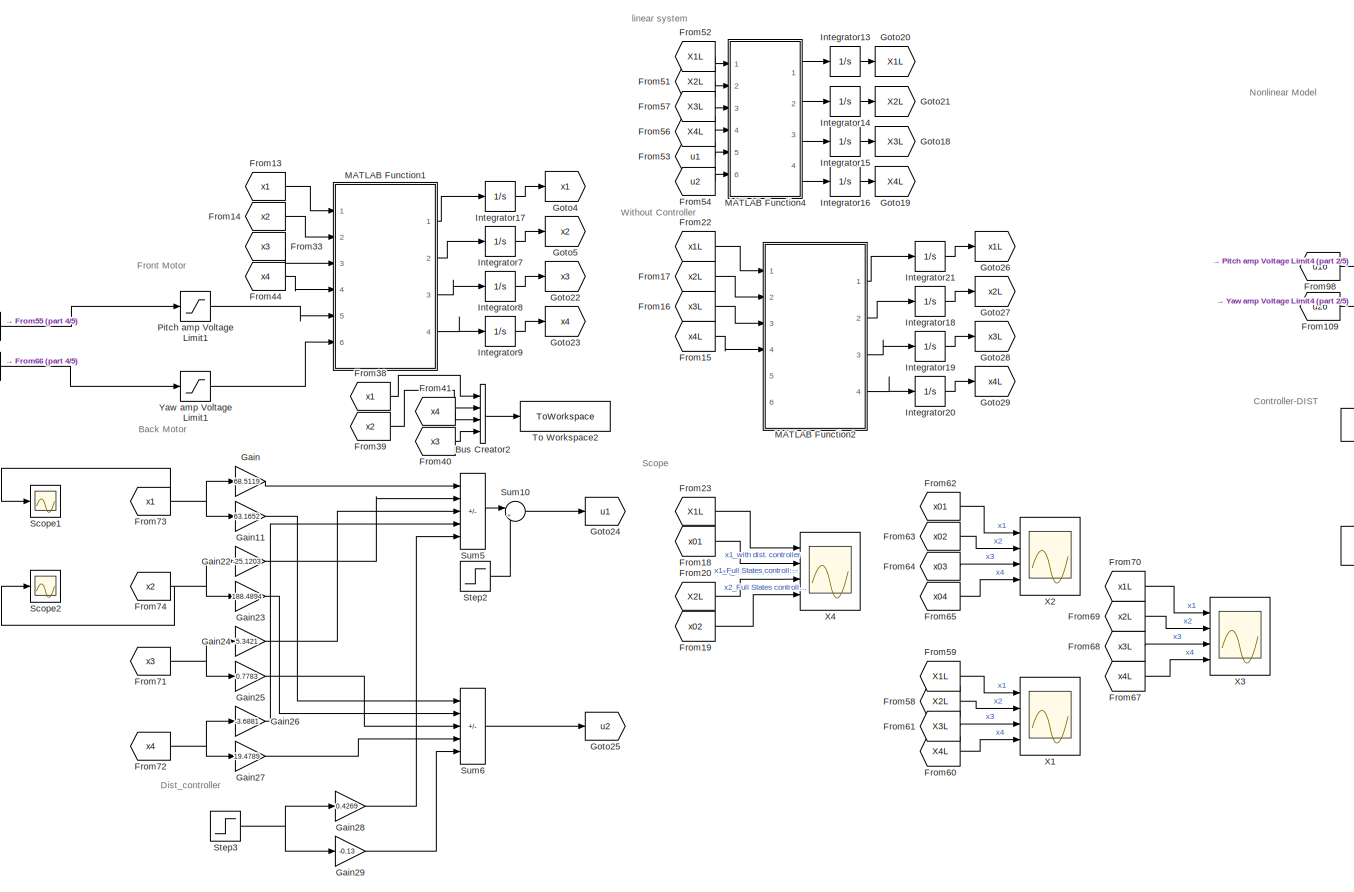
[diagram: root canvas - part 1/5, center side, full height]
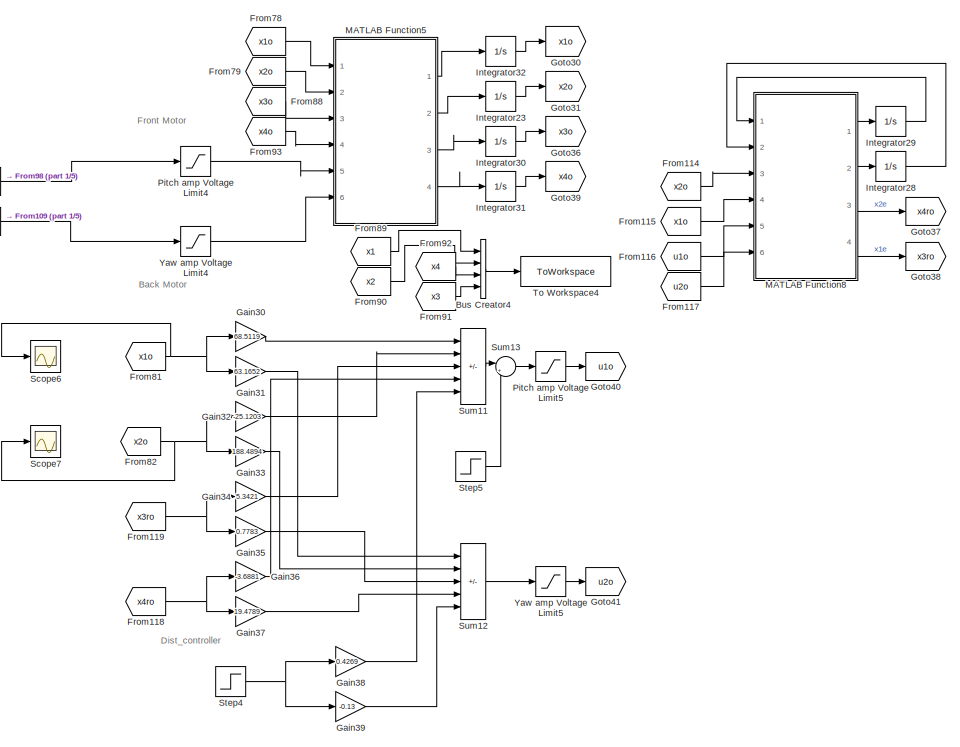
[diagram: root canvas - part 2/5, middle right region]
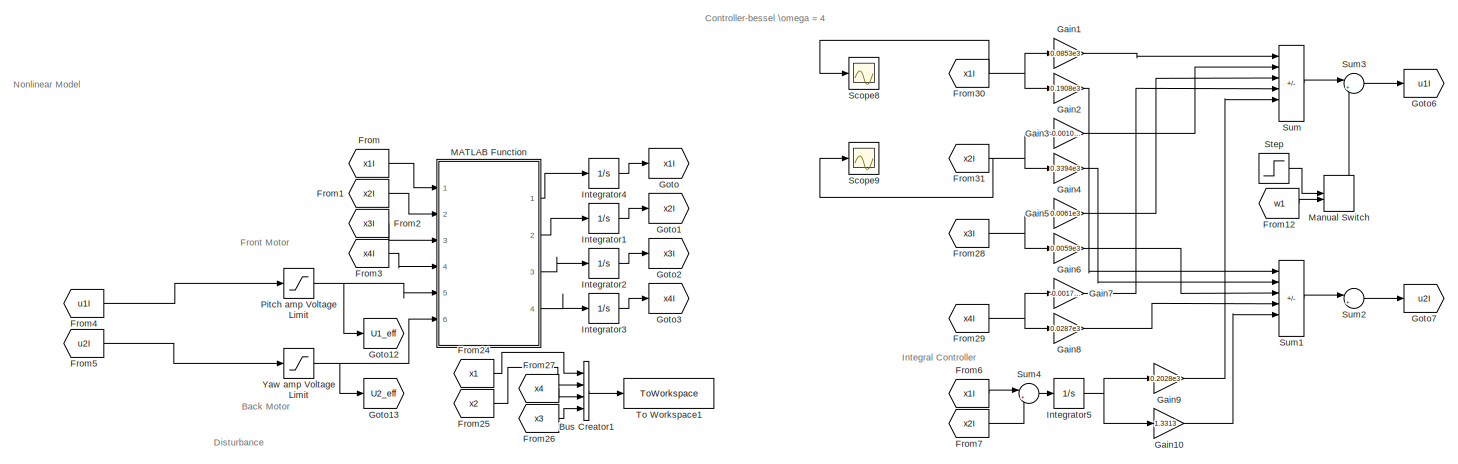
[diagram: root canvas - part 3/5, middle left region]
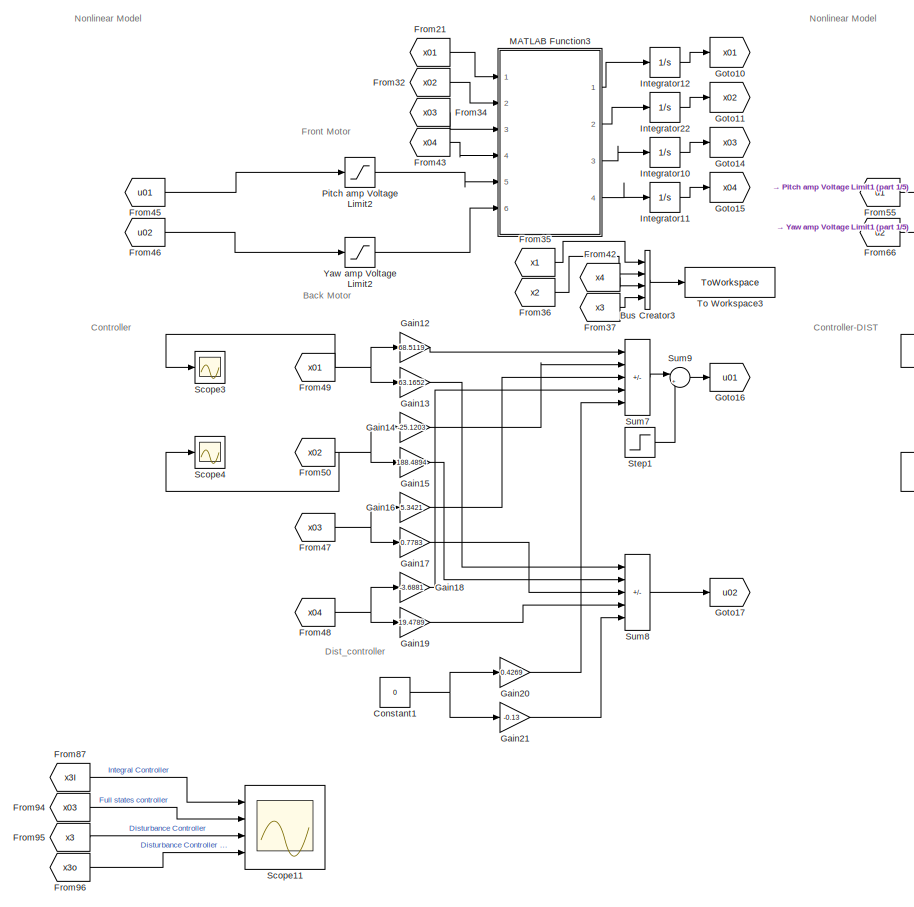
[diagram: root canvas - part 4/5, center side, full height]
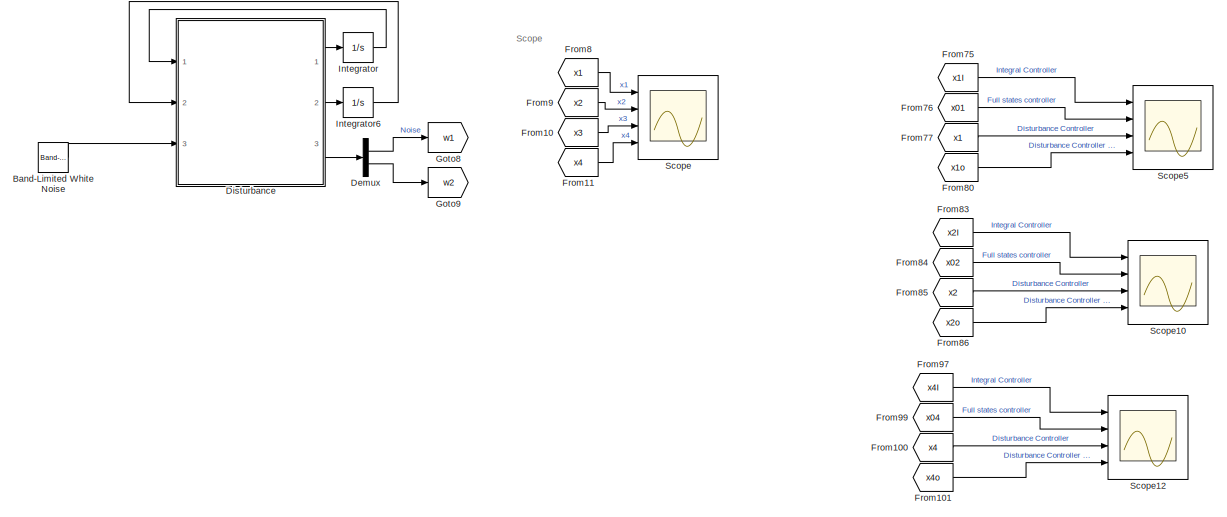
[diagram: root canvas - part 5/5, bottom left region]
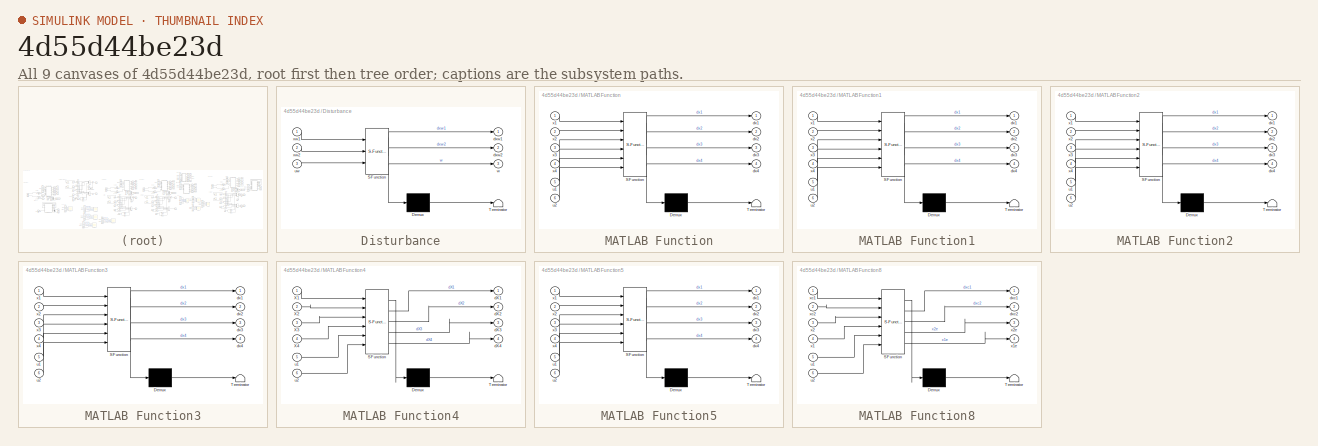
[diagram: thumbnail index - all 9 canvases of the model, root first then tree order]
MODEL slx_4d55d44be23d
KIND model
CONFIG AbsTol = auto
CONFIG EnableMultiTasking = off
CONFIG FixedStep = auto
CONFIG InitFcn = % NOTE: If using VoltPAQ-X1, make sure both Gain switches are set to 3.\nK_AMP = 3;\n% Maximum Output Voltage (V): YAW limited to 15 V. PITCH limited to 24 V.\nVMAX_AMP_P = 24;\nVMAX_AMP_Y = 15;\n% Initial Angle of Pitch (rad)\ntheta_0 = -40.5*pi/180;\n\ng = 9.81;\n\n% Pitch and Yaw Motor Armature Resistance (Ohm)\nR_m_p = 0.83;\nR_m_y = 1.60;\n\n% Pitch and Yaw Motor Current-Torque Constant (N.m/A)\nK_t_p = 0.0...<+2432ch>
CONFIG MaxStep = 1e-3
CONFIG MinStep = auto
CONFIG RelTol = 1e-3
CONFIG SampleTimeConstraint = Unconstrained
CONFIG Solver = VariableStepAuto
CONFIG SolverName = VariableStepAuto
CONFIG StartTime = 0.0
CONFIG StopTime = 10
BLOCK [Reference] Band-Limited White Noise  REF=simulink/Sources/Band-Limited
White Noise
  Ports = [0, 1]
  SourceBlock = simulink/Sources/Band-Limited\nWhite Noise
  SourceProductBaseCode = SL
  SourceType = Band-Limited White Noise.
BLOCK [BusCreator] Bus Creator1
  DisplayOption = bar
  InheritFromInputs = on
  Inputs = 4
  Ports = [4, 1]
BLOCK [BusCreator] Bus Creator2
  DisplayOption = bar
  InheritFromInputs = on
  Inputs = 4
  Ports = [4, 1]
BLOCK [BusCreator] Bus Creator3
  DisplayOption = bar
  InheritFromInputs = on
  Inputs = 4
  Ports = [4, 1]
BLOCK [BusCreator] Bus Creator4
  DisplayOption = bar
  InheritFromInputs = on
  Inputs = 4
  Ports = [4, 1]
BLOCK [Constant] Constant1
  Value = 0
BLOCK [Demux] Demux
  Outputs = 2
  Ports = [1, 2]
BLOCK [SubSystem] Disturbance
  ErrorFcn = Stateflow.Translate.translate
  PermitHierarchicalResolution = ExplicitOnly
  Ports = [3, 3]
  RequestExecContextInheritance = off
  SFBlockType = MATLAB Function
  TreatAsAtomicUnit = on
BLOCK [Demux] Disturbance/ Demux 
  Outputs = 1
  Ports = [1, 1]
BLOCK [S-Function] Disturbance/ SFunction 
  EnableBusSupport = on
  FunctionName = sf_sfun
  PortCounts = [3 4]
  Ports = [3, 4]
  SFcnIsStateOwnerBlock = off
  SFunctionDeploymentMode = off
  Tag = Stateflow S-Function Integral_controller_disturbance 19
BLOCK [Terminator] Disturbance/ Terminator 
BLOCK [Outport] Disturbance/dxw1
BLOCK [Outport] Disturbance/dxw2
  Port = 2
BLOCK [Inport] Disturbance/uw
  Port = 3
BLOCK [Outport] Disturbance/w
  Port = 3
BLOCK [Inport] Disturbance/xw1
BLOCK [Inport] Disturbance/xw2
  Port = 2
BLOCK [From] From
  GotoTag = x1I
BLOCK [From] From1
  GotoTag = x2I
BLOCK [From] From10
  GotoTag = x3
BLOCK [From] From100
  GotoTag = x4
BLOCK [From] From101
  GotoTag = x4o
BLOCK [From] From109
  GotoTag = u2o
BLOCK [From] From11
  GotoTag = x4
BLOCK [From] From114
  GotoTag = x2o
BLOCK [From] From115
  GotoTag = x1o
BLOCK [From] From116
  GotoTag = u1o
BLOCK [From] From117
  GotoTag = u2o
BLOCK [From] From118
  GotoTag = x4ro
BLOCK [From] From119
  GotoTag = x3ro
BLOCK [From] From12
  GotoTag = w1
BLOCK [From] From13
  GotoTag = x1
BLOCK [From] From14
  GotoTag = x2
BLOCK [From] From15
  GotoTag = x4L
BLOCK [From] From16
  GotoTag = x3L
BLOCK [From] From17
  GotoTag = x2L
BLOCK [From] From18
  GotoTag = x01
BLOCK [From] From19
  GotoTag = x02
BLOCK [From] From2
  GotoTag = x3I
BLOCK [From] From20
  GotoTag = X2L
BLOCK [From] From21
  GotoTag = x01
BLOCK [From] From22
  GotoTag = x1L
BLOCK [From] From23
  GotoTag = X1L
BLOCK [From] From24
  GotoTag = x1
BLOCK [From] From25
  GotoTag = x2
BLOCK [From] From26
  GotoTag = x3
BLOCK [From] From27
  GotoTag = x4
BLOCK [From] From28
  GotoTag = x3I
BLOCK [From] From29
  GotoTag = x4I
BLOCK [From] From3
  GotoTag = x4I
BLOCK [From] From30
  GotoTag = x1I
BLOCK [From] From31
  GotoTag = x2I
BLOCK [From] From32
  GotoTag = x02
BLOCK [From] From33
  GotoTag = x3
BLOCK [From] From34
  GotoTag = x03
BLOCK [From] From35
  GotoTag = x1
BLOCK [From] From36
  GotoTag = x2
BLOCK [From] From37
  GotoTag = x3
BLOCK [From] From38
  GotoTag = x1
BLOCK [From] From39
  GotoTag = x2
BLOCK [From] From4
  GotoTag = u1I
BLOCK [From] From40
  GotoTag = x3
BLOCK [From] From41
  GotoTag = x4
BLOCK [From] From42
  GotoTag = x4
BLOCK [From] From43
  GotoTag = x04
BLOCK [From] From44
  GotoTag = x4
BLOCK [From] From45
  GotoTag = u01
BLOCK [From] From46
  GotoTag = u02
BLOCK [From] From47
  GotoTag = x03
BLOCK [From] From48
  GotoTag = x04
BLOCK [From] From49
  GotoTag = x01
BLOCK [From] From5
  GotoTag = u2I
BLOCK [From] From50
  GotoTag = x02
BLOCK [From] From51
  GotoTag = X2L
BLOCK [From] From52
  GotoTag = X1L
BLOCK [From] From53
  GotoTag = u1
BLOCK [From] From54
  GotoTag = u2
BLOCK [From] From55
  GotoTag = u1
BLOCK [From] From56
  GotoTag = X4L
BLOCK [From] From57
  GotoTag = X3L
BLOCK [From] From58
  GotoTag = X2L
BLOCK [From] From59
  GotoTag = X1L
BLOCK [From] From6
  GotoTag = x1I
BLOCK [From] From60
  GotoTag = X4L
BLOCK [From] From61
  GotoTag = X3L
BLOCK [From] From62
  GotoTag = x01
BLOCK [From] From63
  GotoTag = x02
BLOCK [From] From64
  GotoTag = x03
BLOCK [From] From65
  GotoTag = x04
BLOCK [From] From66
  GotoTag = u2
BLOCK [From] From67
  GotoTag = x4L
BLOCK [From] From68
  GotoTag = x3L
BLOCK [From] From69
  GotoTag = x2L
BLOCK [From] From7
  GotoTag = x2I
BLOCK [From] From70
  GotoTag = x1L
BLOCK [From] From71
  GotoTag = x3
BLOCK [From] From72
  GotoTag = x4
BLOCK [From] From73
  GotoTag = x1
BLOCK [From] From74
  GotoTag = x2
BLOCK [From] From75
  GotoTag = x1I
BLOCK [From] From76
  GotoTag = x01
BLOCK [From] From77
  GotoTag = x1
BLOCK [From] From78
  GotoTag = x1o
BLOCK [From] From79
  GotoTag = x2o
BLOCK [From] From8
  GotoTag = x1
BLOCK [From] From80
  GotoTag = x1o
BLOCK [From] From81
  GotoTag = x1o
BLOCK [From] From82
  GotoTag = x2o
BLOCK [From] From83
  GotoTag = x2I
BLOCK [From] From84
  GotoTag = x02
BLOCK [From] From85
  GotoTag = x2
BLOCK [From] From86
  GotoTag = x2o
BLOCK [From] From87
  GotoTag = x3I
BLOCK [From] From88
  GotoTag = x3o
BLOCK [From] From89
  GotoTag = x1
BLOCK [From] From9
  GotoTag = x2
BLOCK [From] From90
  GotoTag = x2
BLOCK [From] From91
  GotoTag = x3
BLOCK [From] From92
  GotoTag = x4
BLOCK [From] From93
  GotoTag = x4o
BLOCK [From] From94
  GotoTag = x03
BLOCK [From] From95
  GotoTag = x3
BLOCK [From] From96
  GotoTag = x3o
BLOCK [From] From97
  GotoTag = x4I
BLOCK [From] From98
  GotoTag = u1o
BLOCK [From] From99
  GotoTag = x04
BLOCK [Gain] Gain
  Gain = 68.5119
BLOCK [Gain] Gain1
  Gain = 0.0853e3
BLOCK [Gain] Gain10
  Gain = 1.3313
BLOCK [Gain] Gain11
  Gain = 63.1652
BLOCK [Gain] Gain12
  Gain = 68.5119
BLOCK [Gain] Gain13
  Gain = 63.1652
BLOCK [Gain] Gain14
  Gain = -25.1203
BLOCK [Gain] Gain15
  Gain = 188.4894
BLOCK [Gain] Gain16
  Gain = 5.3421
BLOCK [Gain] Gain17
  Gain = 0.7783
BLOCK [Gain] Gain18
  Gain = -3.6881
BLOCK [Gain] Gain19
  Gain = 19.4789
BLOCK [Gain] Gain2
  Gain = 0.1908e3
BLOCK [Gain] Gain20
  Gain = 0.4269
BLOCK [Gain] Gain21
  Gain = -0.13
BLOCK [Gain] Gain22
  Gain = -25.1203
BLOCK [Gain] Gain23
  Gain = 188.4894
BLOCK [Gain] Gain24
  Gain = 5.3421
BLOCK [Gain] Gain25
  Gain = 0.7783
BLOCK [Gain] Gain26
  Gain = -3.6881
BLOCK [Gain] Gain27
  Gain = 19.4789
BLOCK [Gain] Gain28
  Gain = 0.4269
BLOCK [Gain] Gain29
  Gain = -0.13
BLOCK [Gain] Gain3
  Gain = -0.0010e3
BLOCK [Gain] Gain30
  Gain = 68.5119
BLOCK [Gain] Gain31
  Gain = 63.1652
BLOCK [Gain] Gain32
  Gain = -25.1203
BLOCK [Gain] Gain33
  Gain = 188.4894
BLOCK [Gain] Gain34
  Gain = 5.3421
BLOCK [Gain] Gain35
  Gain = 0.7783
BLOCK [Gain] Gain36
  Gain = -3.6881
BLOCK [Gain] Gain37
  Gain = 19.4789
BLOCK [Gain] Gain38
  Gain = 0.4269
BLOCK [Gain] Gain39
  Gain = -0.13
BLOCK [Gain] Gain4
  Gain = 0.3394e3
BLOCK [Gain] Gain5
  Gain = 0.0061e3
BLOCK [Gain] Gain6
  Gain = 0.0059e3
BLOCK [Gain] Gain7
  Gain = -0.0017e3
BLOCK [Gain] Gain8
  Gain = 0.0287e3
BLOCK [Gain] Gain9
  Gain = 0.2028e3
BLOCK [Goto] Goto
  GotoTag = x1I
BLOCK [Goto] Goto1
  GotoTag = x2I
BLOCK [Goto] Goto10
  GotoTag = x01
BLOCK [Goto] Goto11
  GotoTag = x02
BLOCK [Goto] Goto12
  GotoTag = U1_eff
BLOCK [Goto] Goto13
  GotoTag = U2_eff
BLOCK [Goto] Goto14
  GotoTag = x03
BLOCK [Goto] Goto15
  GotoTag = x04
BLOCK [Goto] Goto16
  GotoTag = u01
BLOCK [Goto] Goto17
  GotoTag = u02
BLOCK [Goto] Goto18
  GotoTag = X3L
BLOCK [Goto] Goto19
  GotoTag = X4L
BLOCK [Goto] Goto2
  GotoTag = x3I
BLOCK [Goto] Goto20
  GotoTag = X1L
BLOCK [Goto] Goto21
  GotoTag = X2L
BLOCK [Goto] Goto22
  GotoTag = x3
BLOCK [Goto] Goto23
  GotoTag = x4
BLOCK [Goto] Goto24
  GotoTag = u1
BLOCK [Goto] Goto25
  GotoTag = u2
BLOCK [Goto] Goto26
  GotoTag = x1L
BLOCK [Goto] Goto27
  GotoTag = x2L
BLOCK [Goto] Goto28
  GotoTag = x3L
BLOCK [Goto] Goto29
  GotoTag = x4L
BLOCK [Goto] Goto3
  GotoTag = x4I
BLOCK [Goto] Goto30
  GotoTag = x1o
BLOCK [Goto] Goto31
  GotoTag = x2o
BLOCK [Goto] Goto36
  GotoTag = x3o
BLOCK [Goto] Goto37
  GotoTag = x4ro
BLOCK [Goto] Goto38
  GotoTag = x3ro
BLOCK [Goto] Goto39
  GotoTag = x4o
BLOCK [Goto] Goto4
  GotoTag = x1
BLOCK [Goto] Goto40
  GotoTag = u1o
BLOCK [Goto] Goto41
  GotoTag = u2o
BLOCK [Goto] Goto5
  GotoTag = x2
BLOCK [Goto] Goto6
  GotoTag = u1I
BLOCK [Goto] Goto7
  GotoTag = u2I
BLOCK [Goto] Goto8
  GotoTag = w1
BLOCK [Goto] Goto9
  GotoTag = w2
BLOCK [Integrator] Integrator
  Ports = [1, 1]
BLOCK [Integrator] Integrator1
  Ports = [1, 1]
BLOCK [Integrator] Integrator10
  InitialCondition = 10
  Ports = [1, 1]
BLOCK [Integrator] Integrator11
  Ports = [1, 1]
BLOCK [Integrator] Integrator12
  LowerSaturationLimit = -40.5*pi/180
  Ports = [1, 1]
  UpperSaturationLimit = 40.5*pi/180
BLOCK [Integrator] Integrator13
  LowerSaturationLimit = -40.5*pi/180
  Ports = [1, 1]
  UpperSaturationLimit = 40.5*pi/180
BLOCK [Integrator] Integrator14
  Ports = [1, 1]
BLOCK [Integrator] Integrator15
  InitialCondition = 10
  Ports = [1, 1]
BLOCK [Integrator] Integrator16
  Ports = [1, 1]
BLOCK [Integrator] Integrator17
  LowerSaturationLimit = -40.5*pi/180
  Ports = [1, 1]
  UpperSaturationLimit = 40.5*pi/180
BLOCK [Integrator] Integrator18
  Ports = [1, 1]
BLOCK [Integrator] Integrator19
  InitialCondition = 10
  Ports = [1, 1]
BLOCK [Integrator] Integrator2
  InitialCondition = 10
  Ports = [1, 1]
BLOCK [Integrator] Integrator20
  Ports = [1, 1]
BLOCK [Integrator] Integrator21
  LowerSaturationLimit = -40.5*pi/180
  Ports = [1, 1]
  UpperSaturationLimit = 40.5*pi/180
BLOCK [Integrator] Integrator22
  Ports = [1, 1]
BLOCK [Integrator] Integrator23
  Ports = [1, 1]
BLOCK [Integrator] Integrator28
  Ports = [1, 1]
BLOCK [Integrator] Integrator29
  Ports = [1, 1]
BLOCK [Integrator] Integrator3
  Ports = [1, 1]
BLOCK [Integrator] Integrator30
  InitialCondition = 10
  Ports = [1, 1]
BLOCK [Integrator] Integrator31
  Ports = [1, 1]
BLOCK [Integrator] Integrator32
  LowerSaturationLimit = -40.5*pi/180
  Ports = [1, 1]
  UpperSaturationLimit = 40.5*pi/180
BLOCK [Integrator] Integrator4
  LowerSaturationLimit = -40.5*pi/180
  Ports = [1, 1]
  UpperSaturationLimit = 40.5*pi/180
BLOCK [Integrator] Integrator5
  LowerSaturationLimit = -40.5*pi/180
  Ports = [1, 1]
  UpperSaturationLimit = 40.5*pi/180
BLOCK [Integrator] Integrator6
  Ports = [1, 1]
BLOCK [Integrator] Integrator7
  Ports = [1, 1]
BLOCK [Integrator] Integrator8
  InitialCondition = 10
  Ports = [1, 1]
BLOCK [Integrator] Integrator9
  Ports = [1, 1]
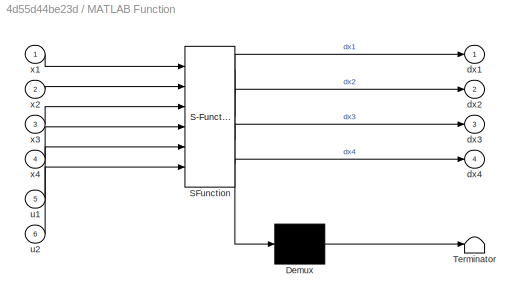
BLOCK [SubSystem] MATLAB Function
  ErrorFcn = Stateflow.Translate.translate
  PermitHierarchicalResolution = ExplicitOnly
  Ports = [6, 4]
  RequestExecContextInheritance = off
  SFBlockType = MATLAB Function
  TreatAsAtomicUnit = on
BLOCK [Demux] MATLAB Function/ Demux 
  Outputs = 1
  Ports = [1, 1]
BLOCK [S-Function] MATLAB Function/ SFunction 
  EnableBusSupport = on
  FunctionName = sf_sfun
  PortCounts = [6 5]
  Ports = [6, 5]
  SFcnIsStateOwnerBlock = off
  SFunctionDeploymentMode = off
  Tag = Stateflow S-Function Integral_controller_disturbance 18
BLOCK [Terminator] MATLAB Function/ Terminator 
BLOCK [Outport] MATLAB Function/dx1
BLOCK [Outport] MATLAB Function/dx2
  Port = 2
BLOCK [Outport] MATLAB Function/dx3
  Port = 3
BLOCK [Outport] MATLAB Function/dx4
  Port = 4
BLOCK [Inport] MATLAB Function/u1
  Port = 5
BLOCK [Inport] MATLAB Function/u2
  Port = 6
BLOCK [Inport] MATLAB Function/x1
BLOCK [Inport] MATLAB Function/x2
  Port = 2
BLOCK [Inport] MATLAB Function/x3
  Port = 3
BLOCK [Inport] MATLAB Function/x4
  Port = 4
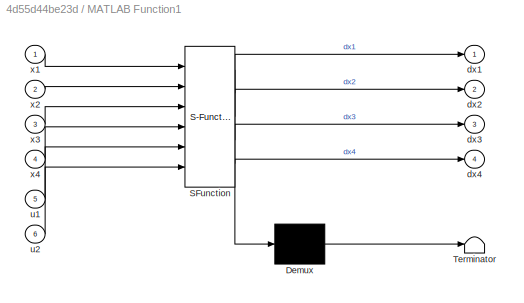
BLOCK [SubSystem] MATLAB Function1
  ErrorFcn = Stateflow.Translate.translate
  PermitHierarchicalResolution = ExplicitOnly
  Ports = [6, 4]
  RequestExecContextInheritance = off
  SFBlockType = MATLAB Function
  TreatAsAtomicUnit = on
BLOCK [Demux] MATLAB Function1/ Demux 
  Outputs = 1
  Ports = [1, 1]
BLOCK [S-Function] MATLAB Function1/ SFunction 
  EnableBusSupport = on
  FunctionName = sf_sfun
  PortCounts = [6 5]
  Ports = [6, 5]
  SFcnIsStateOwnerBlock = off
  SFunctionDeploymentMode = off
  Tag = Stateflow S-Function Integral_controller_disturbance 1
BLOCK [Terminator] MATLAB Function1/ Terminator 
BLOCK [Outport] MATLAB Function1/dx1
BLOCK [Outport] MATLAB Function1/dx2
  Port = 2
BLOCK [Outport] MATLAB Function1/dx3
  Port = 3
BLOCK [Outport] MATLAB Function1/dx4
  Port = 4
BLOCK [Inport] MATLAB Function1/u1
  Port = 5
BLOCK [Inport] MATLAB Function1/u2
  Port = 6
BLOCK [Inport] MATLAB Function1/x1
BLOCK [Inport] MATLAB Function1/x2
  Port = 2
BLOCK [Inport] MATLAB Function1/x3
  Port = 3
BLOCK [Inport] MATLAB Function1/x4
  Port = 4
BLOCK [SubSystem] MATLAB Function2
  ErrorFcn = Stateflow.Translate.translate
  PermitHierarchicalResolution = ExplicitOnly
  Ports = [6, 4]
  RequestExecContextInheritance = off
  SFBlockType = MATLAB Function
  TreatAsAtomicUnit = on
BLOCK [Demux] MATLAB Function2/ Demux 
  Outputs = 1
  Ports = [1, 1]
BLOCK [S-Function] MATLAB Function2/ SFunction 
  EnableBusSupport = on
  FunctionName = sf_sfun
  PortCounts = [6 5]
  Ports = [6, 5]
  SFcnIsStateOwnerBlock = off
  SFunctionDeploymentMode = off
  Tag = Stateflow S-Function Integral_controller_disturbance 2
BLOCK [Terminator] MATLAB Function2/ Terminator 
BLOCK [Outport] MATLAB Function2/dx1
BLOCK [Outport] MATLAB Function2/dx2
  Port = 2
BLOCK [Outport] MATLAB Function2/dx3
  Port = 3
BLOCK [Outport] MATLAB Function2/dx4
  Port = 4
BLOCK [Inport] MATLAB Function2/u1
  Port = 5
BLOCK [Inport] MATLAB Function2/u2
  Port = 6
BLOCK [Inport] MATLAB Function2/x1
BLOCK [Inport] MATLAB Function2/x2
  Port = 2
BLOCK [Inport] MATLAB Function2/x3
  Port = 3
BLOCK [Inport] MATLAB Function2/x4
  Port = 4
BLOCK [SubSystem] MATLAB Function3
  ErrorFcn = Stateflow.Translate.translate
  PermitHierarchicalResolution = ExplicitOnly
  Ports = [6, 4]
  RequestExecContextInheritance = off
  SFBlockType = MATLAB Function
  TreatAsAtomicUnit = on
BLOCK [Demux] MATLAB Function3/ Demux 
  Outputs = 1
  Ports = [1, 1]
BLOCK [S-Function] MATLAB Function3/ SFunction 
  EnableBusSupport = on
  FunctionName = sf_sfun
  PortCounts = [6 5]
  Ports = [6, 5]
  SFcnIsStateOwnerBlock = off
  SFunctionDeploymentMode = off
  Tag = Stateflow S-Function Integral_controller_disturbance 3
BLOCK [Terminator] MATLAB Function3/ Terminator 
BLOCK [Outport] MATLAB Function3/dx1
BLOCK [Outport] MATLAB Function3/dx2
  Port = 2
BLOCK [Outport] MATLAB Function3/dx3
  Port = 3
BLOCK [Outport] MATLAB Function3/dx4
  Port = 4
BLOCK [Inport] MATLAB Function3/u1
  Port = 5
BLOCK [Inport] MATLAB Function3/u2
  Port = 6
BLOCK [Inport] MATLAB Function3/x1
BLOCK [Inport] MATLAB Function3/x2
  Port = 2
BLOCK [Inport] MATLAB Function3/x3
  Port = 3
BLOCK [Inport] MATLAB Function3/x4
  Port = 4
BLOCK [SubSystem] MATLAB Function4
  ErrorFcn = Stateflow.Translate.translate
  PermitHierarchicalResolution = ExplicitOnly
  Ports = [6, 4]
  RequestExecContextInheritance = off
  SFBlockType = MATLAB Function
  TreatAsAtomicUnit = on
BLOCK [Demux] MATLAB Function4/ Demux 
  Outputs = 1
  Ports = [1, 1]
BLOCK [S-Function] MATLAB Function4/ SFunction 
  EnableBusSupport = on
  FunctionName = sf_sfun
  PortCounts = [6 5]
  Ports = [6, 5]
  SFcnIsStateOwnerBlock = off
  SFunctionDeploymentMode = off
  Tag = Stateflow S-Function Integral_controller_disturbance 4
BLOCK [Terminator] MATLAB Function4/ Terminator 
BLOCK [Inport] MATLAB Function4/X1
BLOCK [Inport] MATLAB Function4/X2
  Port = 2
BLOCK [Inport] MATLAB Function4/X3
  Port = 3
BLOCK [Inport] MATLAB Function4/X4
  Port = 4
BLOCK [Outport] MATLAB Function4/dX1
BLOCK [Outport] MATLAB Function4/dX2
  Port = 2
BLOCK [Outport] MATLAB Function4/dX3
  Port = 3
BLOCK [Outport] MATLAB Function4/dX4
  Port = 4
BLOCK [Inport] MATLAB Function4/u1
  Port = 5
BLOCK [Inport] MATLAB Function4/u2
  Port = 6
BLOCK [SubSystem] MATLAB Function5
  ErrorFcn = Stateflow.Translate.translate
  PermitHierarchicalResolution = ExplicitOnly
  Ports = [6, 4]
  RequestExecContextInheritance = off
  SFBlockType = MATLAB Function
  TreatAsAtomicUnit = on
BLOCK [Demux] MATLAB Function5/ Demux 
  Outputs = 1
  Ports = [1, 1]
BLOCK [S-Function] MATLAB Function5/ SFunction 
  EnableBusSupport = on
  FunctionName = sf_sfun
  PortCounts = [6 5]
  Ports = [6, 5]
  SFcnIsStateOwnerBlock = off
  SFunctionDeploymentMode = off
  Tag = Stateflow S-Function Integral_controller_disturbance 5
BLOCK [Terminator] MATLAB Function5/ Terminator 
BLOCK [Outport] MATLAB Function5/dx1
BLOCK [Outport] MATLAB Function5/dx2
  Port = 2
BLOCK [Outport] MATLAB Function5/dx3
  Port = 3
BLOCK [Outport] MATLAB Function5/dx4
  Port = 4
BLOCK [Inport] MATLAB Function5/u1
  Port = 5
BLOCK [Inport] MATLAB Function5/u2
  Port = 6
BLOCK [Inport] MATLAB Function5/x1
BLOCK [Inport] MATLAB Function5/x2
  Port = 2
BLOCK [Inport] MATLAB Function5/x3
  Port = 3
BLOCK [Inport] MATLAB Function5/x4
  Port = 4
BLOCK [SubSystem] MATLAB Function8
  ErrorFcn = Stateflow.Translate.translate
  PermitHierarchicalResolution = ExplicitOnly
  Ports = [6, 4]
  RequestExecContextInheritance = off
  SFBlockType = MATLAB Function
  TreatAsAtomicUnit = on
BLOCK [Demux] MATLAB Function8/ Demux 
  Outputs = 1
  Ports = [1, 1]
BLOCK [S-Function] MATLAB Function8/ SFunction 
  EnableBusSupport = on
  FunctionName = sf_sfun
  PortCounts = [6 5]
  Ports = [6, 5]
  SFcnIsStateOwnerBlock = off
  SFunctionDeploymentMode = off
  Tag = Stateflow S-Function Integral_controller_disturbance 8
BLOCK [Terminator] MATLAB Function8/ Terminator 
BLOCK [Outport] MATLAB Function8/dxc1
BLOCK [Outport] MATLAB Function8/dxc2
  Port = 2
BLOCK [Inport] MATLAB Function8/u1
  Port = 5
BLOCK [Inport] MATLAB Function8/u2
  Port = 6
BLOCK [Inport] MATLAB Function8/x1
  Port = 4
BLOCK [Outport] MATLAB Function8/x1e
  Port = 4
BLOCK [Inport] MATLAB Function8/x2
  Port = 3
BLOCK [Outport] MATLAB Function8/x2e
  Port = 3
BLOCK [Inport] MATLAB Function8/xc1
BLOCK [Inport] MATLAB Function8/xc2
  Port = 2
BLOCK [ManualSwitch] Manual Switch
BLOCK [Saturate] Pitch amp Voltage Limit
  LowerLimit = - VMAX_AMP_P
  UpperLimit = VMAX_AMP_P
BLOCK [Saturate] Pitch amp Voltage Limit1
  LowerLimit = - VMAX_AMP_P
  UpperLimit = VMAX_AMP_P
BLOCK [Saturate] Pitch amp Voltage Limit2
  LowerLimit = - VMAX_AMP_P
  UpperLimit = VMAX_AMP_P
BLOCK [Saturate] Pitch amp Voltage Limit4
  LowerLimit = - VMAX_AMP_P
  UpperLimit = VMAX_AMP_P
BLOCK [Saturate] Pitch amp Voltage Limit5
  LowerLimit = - VMAX_AMP_P
  UpperLimit = VMAX_AMP_P
BLOCK [Scope] Scope
  Floating = off
  NumInputPorts = 4
  Ports = [4]
  ScopeSpecificationString = Simulink.scopes.TimeScopeBlockCfg('CurrentConfiguration', extmgr.ConfigurationSet(extmgr.Configuration('Core','General UI',true,'FigureColor',[1 1 1]),extmgr.Configuration('Core','Source UI',true),extmgr.Configuration('Sources','WiredSimulink',true,'DataLoggingVariableName','ScopeData2'),extmgr.Configuration('Visuals','Time Domain',true,'SerializedDisplays',{struct('MinYLimReal','-4.56738','MaxYLi...<+2046ch>
BLOCK [Scope] Scope1
  Floating = off
  NumInputPorts = 1
  Ports = [1]
  ScopeSpecificationString = Simulink.scopes.TimeScopeBlockCfg('CurrentConfiguration', extmgr.ConfigurationSet(extmgr.Configuration('Core','General UI',true),extmgr.Configuration('Core','Source UI',true),extmgr.Configuration('Sources','WiredSimulink',true,'DataLoggingVariableName','ScopeData1'),extmgr.Configuration('Visuals','Time Domain',true,'SerializedDisplays',{struct('MinYLimReal','-0.51971','MaxYLimReal','0.05775','YLab...<+1370ch>
BLOCK [Scope] Scope10
  Floating = off
  NumInputPorts = 4
  Ports = [4]
  ScopeSpecificationString = Simulink.scopes.TimeScopeBlockCfg('CurrentConfiguration', extmgr.ConfigurationSet(extmgr.Configuration('Core','General UI',true,'FigureColor',[1 1 1]),extmgr.Configuration('Core','Source UI',true),extmgr.Configuration('Sources','WiredSimulink',true,'DataLoggingVariableName','ScopeData12'),extmgr.Configuration('Visuals','Time Domain',true,'SerializedDisplays',{struct('MinYLimReal','-1','MaxYLimReal...<+2142ch>
BLOCK [Scope] Scope11
  Floating = off
  NumInputPorts = 4
  Ports = [4]
  ScopeSpecificationString = Simulink.scopes.TimeScopeBlockCfg('CurrentConfiguration', extmgr.ConfigurationSet(extmgr.Configuration('Core','General UI',true,'FigureColor',[1 1 1]),extmgr.Configuration('Core','Source UI',true),extmgr.Configuration('Sources','WiredSimulink',true,'DataLoggingVariableName','ScopeData13'),extmgr.Configuration('Visuals','Time Domain',true,'SerializedDisplays',{struct('MinYLimReal','-5','MaxYLimReal...<+2144ch>
BLOCK [Scope] Scope12
  Floating = off
  NumInputPorts = 4
  Ports = [4]
  ScopeSpecificationString = Simulink.scopes.TimeScopeBlockCfg('CurrentConfiguration', extmgr.ConfigurationSet(extmgr.Configuration('Core','General UI',true,'FigureColor',[1 1 1]),extmgr.Configuration('Core','Source UI',true),extmgr.Configuration('Sources','WiredSimulink',true,'DataLoggingVariableName','ScopeData14'),extmgr.Configuration('Visuals','Time Domain',true,'SerializedDisplays',{struct('MinYLimReal','-5','MaxYLimReal...<+2142ch>
BLOCK [Scope] Scope2
  Floating = off
  NumInputPorts = 1
  Ports = [1]
  ScopeSpecificationString = Simulink.scopes.TimeScopeBlockCfg('CurrentConfiguration', extmgr.ConfigurationSet(extmgr.Configuration('Core','General UI',true),extmgr.Configuration('Core','Source UI',true),extmgr.Configuration('Sources','WiredSimulink',true,'DataLoggingVariableName','ScopeData2'),extmgr.Configuration('Visuals','Time Domain',true,'SerializedDisplays',{struct('MinYLimReal','-0.09182','MaxYLimReal','2.23242','YLab...<+1370ch>
BLOCK [Scope] Scope3
  Floating = off
  NumInputPorts = 1
  Ports = [1]
  ScopeSpecificationString = Simulink.scopes.TimeScopeBlockCfg('CurrentConfiguration', extmgr.ConfigurationSet(extmgr.Configuration('Core','General UI',true),extmgr.Configuration('Core','Source UI',true),extmgr.Configuration('Sources','WiredSimulink',true,'DataLoggingVariableName','ScopeData3'),extmgr.Configuration('Visuals','Time Domain',true,'SerializedDisplays',{struct('MinYLimReal','-0.51971','MaxYLimReal','0.05775','YLab...<+1370ch>
BLOCK [Scope] Scope4
  Floating = off
  NumInputPorts = 1
  Ports = [1]
  ScopeSpecificationString = Simulink.scopes.TimeScopeBlockCfg('CurrentConfiguration', extmgr.ConfigurationSet(extmgr.Configuration('Core','General UI',true),extmgr.Configuration('Core','Source UI',true),extmgr.Configuration('Sources','WiredSimulink',true,'DataLoggingVariableName','ScopeData4'),extmgr.Configuration('Visuals','Time Domain',true,'SerializedDisplays',{struct('MinYLimReal','-0.09182','MaxYLimReal','2.23242','YLab...<+1370ch>
BLOCK [Scope] Scope5
  Floating = off
  NumInputPorts = 4
  Ports = [4]
  ScopeSpecificationString = Simulink.scopes.TimeScopeBlockCfg('CurrentConfiguration', extmgr.ConfigurationSet(extmgr.Configuration('Core','General UI',true,'FigureColor',[1 1 1]),extmgr.Configuration('Core','Source UI',true),extmgr.Configuration('Sources','WiredSimulink',true,'DataLoggingVariableName','ScopeData9'),extmgr.Configuration('Visuals','Time Domain',true,'SerializedDisplays',{struct('MinYLimReal','-2','MaxYLimReal'...<+2141ch>
BLOCK [Scope] Scope6
  Floating = off
  NumInputPorts = 1
  Ports = [1]
  ScopeSpecificationString = Simulink.scopes.TimeScopeBlockCfg('CurrentConfiguration', extmgr.ConfigurationSet(extmgr.Configuration('Core','General UI',true),extmgr.Configuration('Core','Source UI',true),extmgr.Configuration('Sources','WiredSimulink',true,'DataLoggingVariableName','ScopeData10'),extmgr.Configuration('Visuals','Time Domain',true,'SerializedDisplays',{struct('MinYLimReal','-0.51971','MaxYLimReal','0.05775','YLa...<+1371ch>
BLOCK [Scope] Scope7
  Floating = off
  NumInputPorts = 1
  Ports = [1]
  ScopeSpecificationString = Simulink.scopes.TimeScopeBlockCfg('CurrentConfiguration', extmgr.ConfigurationSet(extmgr.Configuration('Core','General UI',true),extmgr.Configuration('Core','Source UI',true),extmgr.Configuration('Sources','WiredSimulink',true,'DataLoggingVariableName','ScopeData11'),extmgr.Configuration('Visuals','Time Domain',true,'SerializedDisplays',{struct('MinYLimReal','-0.09182','MaxYLimReal','2.23242','YLa...<+1371ch>
BLOCK [Scope] Scope8
  Floating = off
  NumInputPorts = 1
  Ports = [1]
  ScopeSpecificationString = Simulink.scopes.TimeScopeBlockCfg('CurrentConfiguration', extmgr.ConfigurationSet(extmgr.Configuration('Core','General UI',true),extmgr.Configuration('Core','Source UI',true),extmgr.Configuration('Sources','WiredSimulink',true,'DataLoggingVariableName','ScopeData1'),extmgr.Configuration('Visuals','Time Domain',true,'SerializedDisplays',{struct('MinYLimReal','-0.51971','MaxYLimReal','0.05775','YLab...<+1370ch>
BLOCK [Scope] Scope9
  Floating = off
  NumInputPorts = 1
  Ports = [1]
  ScopeSpecificationString = Simulink.scopes.TimeScopeBlockCfg('CurrentConfiguration', extmgr.ConfigurationSet(extmgr.Configuration('Core','General UI',true),extmgr.Configuration('Core','Source UI',true),extmgr.Configuration('Sources','WiredSimulink',true),extmgr.Configuration('Visuals','Time Domain',true,'SerializedDisplays',{struct('MinYLimReal','-0.09182','MaxYLimReal','2.23242','YLabelReal','','MinYLimMag','0.00000','MaxY...<+1331ch>
BLOCK [Step] Step
  SampleTime = 0
BLOCK [Step] Step1
  SampleTime = 0
BLOCK [Step] Step2
  SampleTime = 0
BLOCK [Step] Step3
  SampleTime = 0
BLOCK [Step] Step4
  SampleTime = 0
BLOCK [Step] Step5
  SampleTime = 0
BLOCK [Sum] Sum
  IconShape = rectangular
  Inputs = ------
  Ports = [6, 1]
BLOCK [Sum] Sum1
  IconShape = rectangular
  Inputs = ------
  Ports = [6, 1]
BLOCK [Sum] Sum10
  Inputs = |++
  Ports = [2, 1]
BLOCK [Sum] Sum11
  IconShape = rectangular
  Inputs = -----
  Ports = [5, 1]
BLOCK [Sum] Sum12
  IconShape = rectangular
  Inputs = -----
  Ports = [5, 1]
BLOCK [Sum] Sum13
  Inputs = |++
  Ports = [2, 1]
BLOCK [Sum] Sum2
  Inputs = |++
  Ports = [2, 1]
BLOCK [Sum] Sum3
  Inputs = |++
  Ports = [2, 1]
BLOCK [Sum] Sum4
  Inputs = |++
  Ports = [2, 1]
BLOCK [Sum] Sum5
  IconShape = rectangular
  Inputs = -----
  Ports = [5, 1]
BLOCK [Sum] Sum6
  IconShape = rectangular
  Inputs = -----
  Ports = [5, 1]
BLOCK [Sum] Sum7
  IconShape = rectangular
  Inputs = -----
  Ports = [5, 1]
BLOCK [Sum] Sum8
  IconShape = rectangular
  Inputs = -----
  Ports = [5, 1]
BLOCK [Sum] Sum9
  Inputs = |++
  Ports = [2, 1]
BLOCK [ToWorkspace] To Workspace1
  FixptAsFi = on
  MaxDataPoints = inf
  Ports = [1]
  SampleTime = -1
  VariableName = NonLinear
BLOCK [ToWorkspace] To Workspace2
  FixptAsFi = on
  MaxDataPoints = inf
  Ports = [1]
  SampleTime = -1
  VariableName = NonLinear2
BLOCK [ToWorkspace] To Workspace3
  FixptAsFi = on
  MaxDataPoints = inf
  Ports = [1]
  SampleTime = -1
  VariableName = NonLinear1
BLOCK [ToWorkspace] To Workspace4
  FixptAsFi = on
  MaxDataPoints = inf
  Ports = [1]
  SampleTime = -1
  VariableName = NonLinear3
BLOCK [Scope] X1
  Floating = off
  NumInputPorts = 4
  Ports = [4]
  ScopeSpecificationString = Simulink.scopes.TimeScopeBlockCfg('CurrentConfiguration', extmgr.ConfigurationSet(extmgr.Configuration('Core','General UI',true,'FigureColor',[1 1 1]),extmgr.Configuration('Core','Source UI',true),extmgr.Configuration('Sources','WiredSimulink',true,'DataLoggingVariableName','ScopeData5'),extmgr.Configuration('Visuals','Time Domain',true,'SerializedDisplays',{struct('MinYLimReal','-5.94487','MaxYLi...<+2369ch>
BLOCK [Scope] X2
  Floating = off
  NumInputPorts = 4
  Ports = [4]
  ScopeSpecificationString = Simulink.scopes.TimeScopeBlockCfg('CurrentConfiguration', extmgr.ConfigurationSet(extmgr.Configuration('Core','General UI',true,'FigureColor',[1 1 1]),extmgr.Configuration('Core','Source UI',true),extmgr.Configuration('Sources','WiredSimulink',true,'DataLoggingVariableName','ScopeData6'),extmgr.Configuration('Visuals','Time Domain',true,'SerializedDisplays',{struct('MinYLimReal','-4.56738','MaxYLi...<+2365ch>
BLOCK [Scope] X3
  Floating = off
  NumInputPorts = 4
  Ports = [4]
  ScopeSpecificationString = Simulink.scopes.TimeScopeBlockCfg('CurrentConfiguration', extmgr.ConfigurationSet(extmgr.Configuration('Core','General UI',true,'FigureColor',[1 1 1]),extmgr.Configuration('Core','Source UI',true),extmgr.Configuration('Sources','WiredSimulink',true,'DataLoggingVariableName','ScopeData7'),extmgr.Configuration('Visuals','Time Domain',true,'SerializedDisplays',{struct('MinYLimReal','-4.6385','MaxYLim...<+2363ch>
BLOCK [Scope] X4
  Floating = off
  NumInputPorts = 4
  Ports = [4]
  ScopeSpecificationString = Simulink.scopes.TimeScopeBlockCfg('CurrentConfiguration', extmgr.ConfigurationSet(extmgr.Configuration('Core','General UI',true,'FigureColor',[1 1 1]),extmgr.Configuration('Core','Source UI',true),extmgr.Configuration('Sources','WiredSimulink',true,'DataLoggingVariableName','ScopeData8'),extmgr.Configuration('Visuals','Time Domain',true,'SerializedDisplays',{struct('MinYLimReal','-0.54391','MaxYLi...<+2455ch>
BLOCK [Saturate] Yaw amp Voltage Limit
  LowerLimit = - VMAX_AMP_Y
  UpperLimit = VMAX_AMP_Y
BLOCK [Saturate] Yaw amp Voltage Limit1
  LowerLimit = - VMAX_AMP_Y
  UpperLimit = VMAX_AMP_Y
BLOCK [Saturate] Yaw amp Voltage Limit2
  LowerLimit = - VMAX_AMP_Y
  UpperLimit = VMAX_AMP_Y
BLOCK [Saturate] Yaw amp Voltage Limit4
  LowerLimit = - VMAX_AMP_Y
  UpperLimit = VMAX_AMP_Y
BLOCK [Saturate] Yaw amp Voltage Limit5
  LowerLimit = - VMAX_AMP_Y
  UpperLimit = VMAX_AMP_Y
ANNOTATION (root): Back Motor
ANNOTATION (root): Controller
ANNOTATION (root): Controller-DIST
ANNOTATION (root): Controller-bessel \omega = 4
ANNOTATION (root): Dist_controller
ANNOTATION (root): Disturbance
ANNOTATION (root): Front Motor
ANNOTATION (root): Integral Controller
ANNOTATION (root): Nonlinear Model
ANNOTATION (root): Scope
ANNOTATION (root): Without Controller
ANNOTATION (root): linear system
LINE Band-Limited White Noise:1 -> Disturbance:3
LINE Bus Creator1:1 -> To Workspace1:1
LINE Bus Creator2:1 -> To Workspace2:1
LINE Bus Creator3:1 -> To Workspace3:1
LINE Bus Creator4:1 -> To Workspace4:1
NET Constant1:1 -> Gain20:1, Gain21:1
LINE Demux:1 -> Goto8:1
LINE Demux:2 -> Goto9:1
LINE Disturbance:1 -> Integrator:1
LINE Disturbance:2 -> Integrator6:1
LINE Disturbance:3 -> Demux:1
LINE From100:1 -> Scope12:3
LINE From101:1 -> Scope12:4
LINE From109:1 -> Yaw amp Voltage Limit4:1
LINE From10:1 -> Scope:3
LINE From114:1 -> MATLAB Function8:3
LINE From115:1 -> MATLAB Function8:4
LINE From116:1 -> MATLAB Function8:5
LINE From117:1 -> MATLAB Function8:6
NET From118:1 -> Gain36:1, Gain37:1
NET From119:1 -> Gain34:1, Gain35:1
LINE From11:1 -> Scope:4
LINE From12:1 -> Manual Switch:2
LINE From13:1 -> MATLAB Function1:1
LINE From14:1 -> MATLAB Function1:2
LINE From15:1 -> MATLAB Function2:4
LINE From16:1 -> MATLAB Function2:3
LINE From17:1 -> MATLAB Function2:2
LINE From18:1 -> X4:2
LINE From19:1 -> X4:4
LINE From1:1 -> MATLAB Function:2
LINE From20:1 -> X4:3
LINE From21:1 -> MATLAB Function3:1
LINE From22:1 -> MATLAB Function2:1
LINE From23:1 -> X4:1
LINE From24:1 -> Bus Creator1:1
LINE From25:1 -> Bus Creator1:2
LINE From26:1 -> Bus Creator1:4
LINE From27:1 -> Bus Creator1:3
NET From28:1 -> Gain5:1, Gain6:1
NET From29:1 -> Gain7:1, Gain8:1
LINE From2:1 -> MATLAB Function:3
NET From30:1 -> Gain1:1, Gain2:1, Scope8:1
NET From31:1 -> Gain3:1, Gain4:1, Scope9:1
LINE From32:1 -> MATLAB Function3:2
LINE From33:1 -> MATLAB Function1:3
LINE From34:1 -> MATLAB Function3:3
LINE From35:1 -> Bus Creator3:1
LINE From36:1 -> Bus Creator3:2
LINE From37:1 -> Bus Creator3:4
LINE From38:1 -> Bus Creator2:1
LINE From39:1 -> Bus Creator2:2
LINE From3:1 -> MATLAB Function:4
LINE From40:1 -> Bus Creator2:4
LINE From41:1 -> Bus Creator2:3
LINE From42:1 -> Bus Creator3:3
LINE From43:1 -> MATLAB Function3:4
LINE From44:1 -> MATLAB Function1:4
LINE From45:1 -> Pitch amp Voltage Limit2:1
LINE From46:1 -> Yaw amp Voltage Limit2:1
NET From47:1 -> Gain16:1, Gain17:1
NET From48:1 -> Gain18:1, Gain19:1
NET From49:1 -> Gain12:1, Gain13:1, Scope3:1
LINE From4:1 -> Pitch amp Voltage Limit:1
NET From50:1 -> Gain14:1, Gain15:1, Scope4:1
LINE From51:1 -> MATLAB Function4:2
LINE From52:1 -> MATLAB Function4:1
LINE From53:1 -> MATLAB Function4:5
LINE From54:1 -> MATLAB Function4:6
LINE From55:1 -> Pitch amp Voltage Limit1:1
LINE From56:1 -> MATLAB Function4:4
LINE From57:1 -> MATLAB Function4:3
LINE From58:1 -> X1:2
LINE From59:1 -> X1:1
LINE From5:1 -> Yaw amp Voltage Limit:1
LINE From60:1 -> X1:4
LINE From61:1 -> X1:3
LINE From62:1 -> X2:1
LINE From63:1 -> X2:2
LINE From64:1 -> X2:3
LINE From65:1 -> X2:4
LINE From66:1 -> Yaw amp Voltage Limit1:1
LINE From67:1 -> X3:4
LINE From68:1 -> X3:3
LINE From69:1 -> X3:2
LINE From6:1 -> Sum4:1
LINE From70:1 -> X3:1
NET From71:1 -> Gain24:1, Gain25:1
NET From72:1 -> Gain26:1, Gain27:1
NET From73:1 -> Gain11:1, Gain:1, Scope1:1
NET From74:1 -> Gain22:1, Gain23:1, Scope2:1
LINE From75:1 -> Scope5:1
LINE From76:1 -> Scope5:2
LINE From77:1 -> Scope5:3
LINE From78:1 -> MATLAB Function5:1
LINE From79:1 -> MATLAB Function5:2
LINE From7:1 -> Sum4:2
LINE From80:1 -> Scope5:4
NET From81:1 -> Gain30:1, Gain31:1, Scope6:1
NET From82:1 -> Gain32:1, Gain33:1, Scope7:1
LINE From83:1 -> Scope10:1
LINE From84:1 -> Scope10:2
LINE From85:1 -> Scope10:3
LINE From86:1 -> Scope10:4
LINE From87:1 -> Scope11:1
LINE From88:1 -> MATLAB Function5:3
LINE From89:1 -> Bus Creator4:1
LINE From8:1 -> Scope:1
LINE From90:1 -> Bus Creator4:2
LINE From91:1 -> Bus Creator4:4
LINE From92:1 -> Bus Creator4:3
LINE From93:1 -> MATLAB Function5:4
LINE From94:1 -> Scope11:2
LINE From95:1 -> Scope11:3
LINE From96:1 -> Scope11:4
LINE From97:1 -> Scope12:1
LINE From98:1 -> Pitch amp Voltage Limit4:1
LINE From99:1 -> Scope12:2
LINE From9:1 -> Scope:2
LINE From:1 -> MATLAB Function:1
LINE Gain10:1 -> Sum1:5
LINE Gain11:1 -> Sum6:1
LINE Gain12:1 -> Sum7:1
LINE Gain13:1 -> Sum8:1
LINE Gain14:1 -> Sum7:2
LINE Gain15:1 -> Sum8:2
LINE Gain16:1 -> Sum7:3
LINE Gain17:1 -> Sum8:3
LINE Gain18:1 -> Sum7:4
LINE Gain19:1 -> Sum8:4
LINE Gain1:1 -> Sum:1
LINE Gain20:1 -> Sum7:5
LINE Gain21:1 -> Sum8:5
LINE Gain22:1 -> Sum5:2
LINE Gain23:1 -> Sum6:2
LINE Gain24:1 -> Sum5:3
LINE Gain25:1 -> Sum6:3
LINE Gain26:1 -> Sum5:4
LINE Gain27:1 -> Sum6:4
LINE Gain28:1 -> Sum5:5
LINE Gain29:1 -> Sum6:5
LINE Gain2:1 -> Sum1:1
LINE Gain30:1 -> Sum11:1
LINE Gain31:1 -> Sum12:1
LINE Gain32:1 -> Sum11:2
LINE Gain33:1 -> Sum12:2
LINE Gain34:1 -> Sum11:3
LINE Gain35:1 -> Sum12:3
LINE Gain36:1 -> Sum11:4
LINE Gain37:1 -> Sum12:4
LINE Gain38:1 -> Sum11:5
LINE Gain39:1 -> Sum12:5
LINE Gain3:1 -> Sum:2
LINE Gain4:1 -> Sum1:2
LINE Gain5:1 -> Sum:3
LINE Gain6:1 -> Sum1:3
LINE Gain7:1 -> Sum:4
LINE Gain8:1 -> Sum1:4
LINE Gain9:1 -> Sum:5
LINE Gain:1 -> Sum5:1
LINE Integrator10:1 -> Goto14:1
LINE Integrator11:1 -> Goto15:1
LINE Integrator12:1 -> Goto10:1
LINE Integrator13:1 -> Goto20:1
LINE Integrator14:1 -> Goto21:1
LINE Integrator15:1 -> Goto18:1
LINE Integrator16:1 -> Goto19:1
LINE Integrator17:1 -> Goto4:1
LINE Integrator18:1 -> Goto27:1
LINE Integrator19:1 -> Goto28:1
LINE Integrator1:1 -> Goto1:1
LINE Integrator20:1 -> Goto29:1
LINE Integrator21:1 -> Goto26:1
LINE Integrator22:1 -> Goto11:1
LINE Integrator23:1 -> Goto31:1
LINE Integrator28:1 -> MATLAB Function8:2
LINE Integrator29:1 -> MATLAB Function8:1
LINE Integrator2:1 -> Goto2:1
LINE Integrator30:1 -> Goto36:1
LINE Integrator31:1 -> Goto39:1
LINE Integrator32:1 -> Goto30:1
LINE Integrator3:1 -> Goto3:1
LINE Integrator4:1 -> Goto:1
NET Integrator5:1 -> Gain10:1, Gain9:1
LINE Integrator6:1 -> Disturbance:2
LINE Integrator7:1 -> Goto5:1
LINE Integrator8:1 -> Goto22:1
LINE Integrator9:1 -> Goto23:1
LINE Integrator:1 -> Disturbance:1
LINE MATLAB Function1:1 -> Integrator17:1
LINE MATLAB Function1:2 -> Integrator7:1
LINE MATLAB Function1:3 -> Integrator8:1
LINE MATLAB Function1:4 -> Integrator9:1
LINE MATLAB Function2:1 -> Integrator21:1
LINE MATLAB Function2:2 -> Integrator18:1
LINE MATLAB Function2:3 -> Integrator19:1
LINE MATLAB Function2:4 -> Integrator20:1
LINE MATLAB Function3:1 -> Integrator12:1
LINE MATLAB Function3:2 -> Integrator22:1
LINE MATLAB Function3:3 -> Integrator10:1
LINE MATLAB Function3:4 -> Integrator11:1
LINE MATLAB Function4:1 -> Integrator13:1
LINE MATLAB Function4:2 -> Integrator14:1
LINE MATLAB Function4:3 -> Integrator15:1
LINE MATLAB Function4:4 -> Integrator16:1
LINE MATLAB Function5:1 -> Integrator32:1
LINE MATLAB Function5:2 -> Integrator23:1
LINE MATLAB Function5:3 -> Integrator30:1
LINE MATLAB Function5:4 -> Integrator31:1
LINE MATLAB Function8:1 -> Integrator29:1
LINE MATLAB Function8:2 -> Integrator28:1
LINE MATLAB Function8:3 -> Goto37:1
LINE MATLAB Function8:4 -> Goto38:1
LINE MATLAB Function:1 -> Integrator4:1
LINE MATLAB Function:2 -> Integrator1:1
LINE MATLAB Function:3 -> Integrator2:1
LINE MATLAB Function:4 -> Integrator3:1
LINE Manual Switch:1 -> Sum3:2
LINE Pitch amp Voltage Limit1:1 -> MATLAB Function1:5
LINE Pitch amp Voltage Limit2:1 -> MATLAB Function3:5
LINE Pitch amp Voltage Limit4:1 -> MATLAB Function5:5
LINE Pitch amp Voltage Limit5:1 -> Goto40:1
NET Pitch amp Voltage Limit:1 -> Goto12:1, MATLAB Function:5
LINE Step1:1 -> Sum9:2
LINE Step2:1 -> Sum10:2
NET Step3:1 -> Gain28:1, Gain29:1
NET Step4:1 -> Gain38:1, Gain39:1
LINE Step5:1 -> Sum13:2
LINE Step:1 -> Manual Switch:1
LINE Sum10:1 -> Goto24:1
LINE Sum11:1 -> Sum13:1
LINE Sum12:1 -> Yaw amp Voltage Limit5:1
LINE Sum13:1 -> Pitch amp Voltage Limit5:1
LINE Sum1:1 -> Sum2:1
LINE Sum2:1 -> Goto7:1
LINE Sum3:1 -> Goto6:1
LINE Sum4:1 -> Integrator5:1
LINE Sum5:1 -> Sum10:1
LINE Sum6:1 -> Goto25:1
LINE Sum7:1 -> Sum9:1
LINE Sum8:1 -> Goto17:1
LINE Sum9:1 -> Goto16:1
LINE Sum:1 -> Sum3:1
LINE Yaw amp Voltage Limit1:1 -> MATLAB Function1:6
LINE Yaw amp Voltage Limit2:1 -> MATLAB Function3:6
LINE Yaw amp Voltage Limit4:1 -> MATLAB Function5:6
LINE Yaw amp Voltage Limit5:1 -> Goto41:1
NET Yaw amp Voltage Limit:1 -> Goto13:1, MATLAB Function:6
note: NET lines group one-source signal fan-out (src -> all destinations, sorted); 1:1 wires keep LINE
CHART MATLAB Function1 states=1 transitions=1
  STATE_LABEL 'eML_blk_kernel()'
  STATE_LABEL 'SCRIPT:\nfunction [dx1,dx2,dx3,dx4]= NonlinearFunc(x1,x2,x3,x4,u1,u2)\n%% Initial Conditions\n% Gravitational Constant (m/s^2)\ng = 9.81;\n\n% Pitch and Yaw Motor Armature Resistance (Ohm)\nR_m_p = 0.83;\nR_m_y = 1.60;\n\n% Pitch and Yaw Motor Current-Torque Constant (N.m/A)\nK_t_p = 0.0182;\nK_t_y = 0.0109;\n\n% Pitch and Yaw Motor Voltage-Torque Constant (N.m/V)\nK_yp = K_t_p / R_m_p;\nK_py = K_t_y / R_m_y;\n\n% ...<+2521ch>'  <repeated x4 — deduplicated; at blocks: MATLAB Function1, MATLAB Function2, MATLAB Function5, MATLAB Function>
CHART MATLAB Function2 states=1 transitions=1
  STATE_LABEL 'eML_blk_kernel()'
CHART MATLAB Function3 states=1 transitions=1
  STATE_LABEL 'eML_blk_kernel()'
  STATE_LABEL 'SCRIPT:\nfunction [dx1,dx2,dx3,dx4]= NonlinearFunc(x1,x2,x3,x4,u1,u2)\n%% Initial Conditions\n% Gravitational Constant (m/s^2)\ng = 9.81;\n\n% Pitch and Yaw Motor Armature Resistance (Ohm)\nR_m_p = 0.83;\nR_m_y = 1.60;\n\n% Pitch and Yaw Motor Current-Torque Constant (N.m/A)\nK_t_p = 0.0182;\nK_t_y = 0.0109;\n\n% Pitch and Yaw Motor Voltage-Torque Constant (N.m/V)\nK_yp = K_t_p / R_m_p;\nK_py = K_t_y / R_m_y;\n\n% ...<+2522ch>'
CHART MATLAB Function4 states=1 transitions=1
  STATE_LABEL 'eML_blk_kernel()'
  STATE_LABEL "SCRIPT:\nfunction [dX1,dX2,dX3,dX4] = Linear(X1,X2,X3,X4,u1,u2)\n%#codegen\n\nA=[      0         0    1.0000         0\n         0         0         0    1.0000\n         0         0   -9.2751         0\n         0         0         0   -3.4955];\n     \nB=[      0         0\n         0         0\n    2.3667    0.0790\n    0.2410    0.7913];\n\nX = [X1;X2;X3;X4];\nU=[u1,u2].';\ndX = A*X+B*U;\nxd=-30;\n\ndX1 = dX(1);...<+42ch>"
CHART MATLAB Function5 states=1 transitions=1
  STATE_LABEL 'eML_blk_kernel()'
CHART MATLAB Function8 states=1 transitions=1
  STATE_LABEL 'eML_blk_kernel()'
  STATE_LABEL 'SCRIPT:\nfunction [dxc1,dxc2,x2e,x1e] = Observer(xc1,xc2,x2,x1,u1,u2)\n\nA=[      0         0    1.0000         0\n         0         0         0    1.0000\n         0         0   -9.2751         0\n         0         0         0   -3.4955];\n     \nB=[      0         0\n         0         0\n    2.3667    0.0790\n    0.2410    0.7913];\nC=[  1     0     0     0\n     0     1     0     0];\n\n D=[  0     0\n     ...<+398ch>'
CHART MATLAB Function states=1 transitions=1
  STATE_LABEL 'eML_blk_kernel()'
CHART Disturbance states=1 transitions=1
  STATE_LABEL 'eML_blk_kernel()'
  STATE_LABEL 'SCRIPT:\nfunction [dxw1,dxw2,w] = Disturbance(xw1,xw2,uw)\n\nAw = [0 1;-4 -4];\nxw = [xw1;xw2]+[0;1]*uw;\ndxw = Aw*xw;\ndxw1 = dxw(1);\ndxw2 = dxw(2);\nCw = [1 0;0 1];\nw = Cw*xw;'
